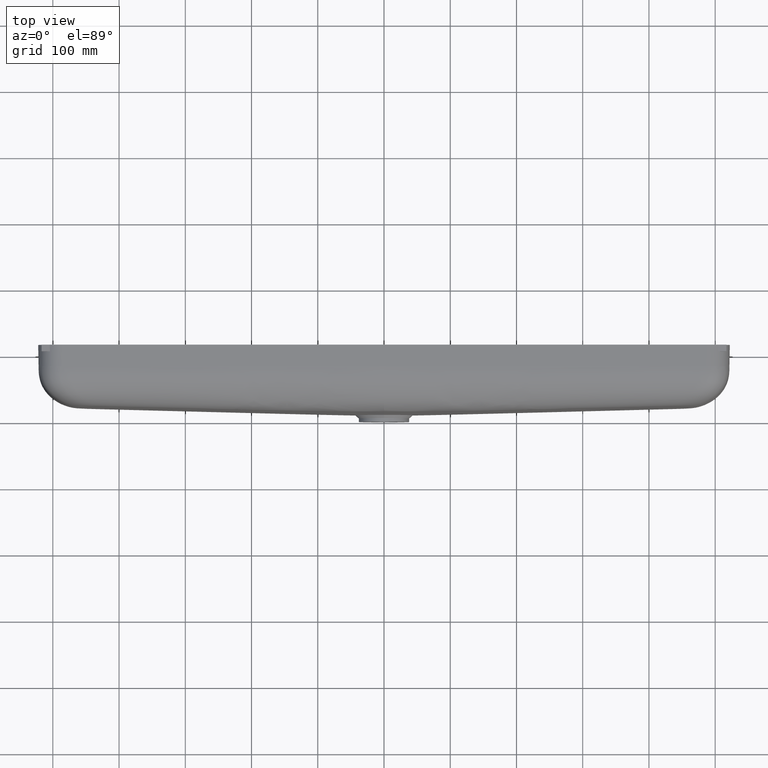
[diagram: clean part render]
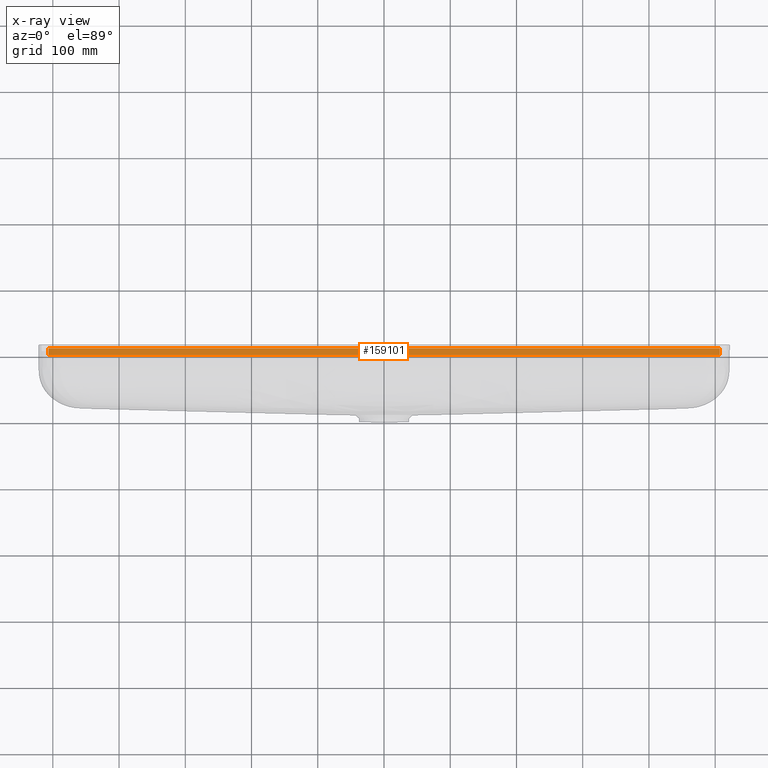
[diagram: x-ray — body ghosted, one internal face saturated and labeled with its STEP entity id]
A machine part, top view, then the same camera in x-ray: the body is ghosted and one INTERNAL B-rep face — a face not visible from any outside direction — is saturated and labeled: STEP entity #159101.
In plain terms, the highlighted planar face has unit normal (0, 0, -1).
Its self-contained STEP definition (entity closure, byte-faithful):
#8748 = CARTESIAN_POINT ( 'NONE',  ( 93.05236519478452800, 103.0000000000000100, 130.0523651947476100 ) ) ;
#10636 = PLANE ( 'NONE',  #11199 ) ;
#11199 = AXIS2_PLACEMENT_3D ( 'NONE', #51965, #70188, #197208 ) ;
#11557 = EDGE_CURVE ( 'NONE', #170188, #64514, #51371, .T. ) ;
#13981 = ORIENTED_EDGE ( 'NONE', *, *, #11557, .T. ) ;
#16695 = EDGE_LOOP ( 'NONE', ( #167933, #149674, #98414, #13981 ) ) ;
#27028 = DIRECTION ( 'NONE',  ( 0.0000000000000000000, 1.000000000000000000, 0.0000000000000000000 ) ) ;
#34956 = CARTESIAN_POINT ( 'NONE',  ( 93.05236519478452800, 113.0000000000000000, 130.0523651947476100 ) ) ;
#43151 = VECTOR ( 'NONE', #234968, 1000.000000000000000 ) ;
#45274 = CARTESIAN_POINT ( 'NONE',  ( 1106.947634805215300, 103.0000000000000100, 130.0523651947476100 ) ) ;
#49129 = EDGE_CURVE ( 'NONE', #170188, #149894, #143556, .T. ) ;
#51371 = LINE ( 'NONE', #45274, #190522 ) ;
#51965 = CARTESIAN_POINT ( 'NONE',  ( 93.05236519478452800, 103.0000000000000100, 130.0523651947476100 ) ) ;
#52744 = CARTESIAN_POINT ( 'NONE',  ( 93.05236519478452800, 113.0000000000000000, 130.0523651947476100 ) ) ;
#64514 = VERTEX_POINT ( 'NONE', #159254 ) ;
#69033 = DIRECTION ( 'NONE',  ( -1.000000000000000000, -0.0000000000000000000, -0.0000000000000000000 ) ) ;
#70188 = DIRECTION ( 'NONE',  ( 0.0000000000000000000, 0.0000000000000000000, -1.000000000000000000 ) ) ;
#81742 = DIRECTION ( 'NONE',  ( 0.0000000000000000000, 1.000000000000000000, 0.0000000000000000000 ) ) ;
#96494 = CARTESIAN_POINT ( 'NONE',  ( 93.05236519478452800, 103.0000000000000100, 130.0523651947476100 ) ) ;
#98414 = ORIENTED_EDGE ( 'NONE', *, *, #49129, .F. ) ;
#105512 = CARTESIAN_POINT ( 'NONE',  ( 93.05236519478452800, 103.0000000000000100, 130.0523651947476100 ) ) ;
#107106 = EDGE_CURVE ( 'NONE', #64514, #164250, #122617, .T. ) ;
#122617 = LINE ( 'NONE', #34956, #43151 ) ;
#143556 = LINE ( 'NONE', #105512, #203234 ) ;
#149674 = ORIENTED_EDGE ( 'NONE', *, *, #228535, .F. ) ;
#149894 = VERTEX_POINT ( 'NONE', #96494 ) ;
#151964 = VECTOR ( 'NONE', #27028, 1000.000000000000000 ) ;
#157017 = FACE_OUTER_BOUND ( 'NONE', #16695, .T. ) ;
#159101 = ADVANCED_FACE ( 'NONE', ( #157017 ), #10636, .F. ) ;
#159254 = CARTESIAN_POINT ( 'NONE',  ( 1106.947634805215300, 113.0000000000000000, 130.0523651947476100 ) ) ;
#164250 = VERTEX_POINT ( 'NONE', #52744 ) ;
#167933 = ORIENTED_EDGE ( 'NONE', *, *, #107106, .T. ) ;
#170188 = VERTEX_POINT ( 'NONE', #217787 ) ;
#190522 = VECTOR ( 'NONE', #81742, 1000.000000000000000 ) ;
#197208 = DIRECTION ( 'NONE',  ( -1.000000000000000000, 0.0000000000000000000, -0.0000000000000000000 ) ) ;
#203234 = VECTOR ( 'NONE', #69033, 1000.000000000000000 ) ;
#217787 = CARTESIAN_POINT ( 'NONE',  ( 1106.947634805215300, 103.0000000000000100, 130.0523651947476100 ) ) ;
#228535 = EDGE_CURVE ( 'NONE', #149894, #164250, #234247, .T. ) ;
#234247 = LINE ( 'NONE', #8748, #151964 ) ;
#234968 = DIRECTION ( 'NONE',  ( -1.000000000000000000, -0.0000000000000000000, -0.0000000000000000000 ) ) ;